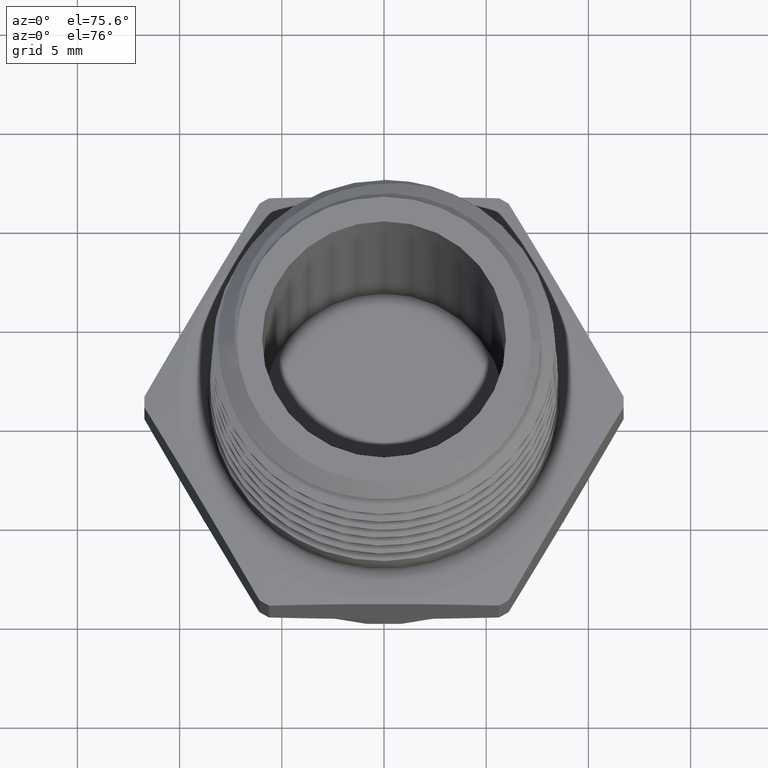
[diagram: clean part render]
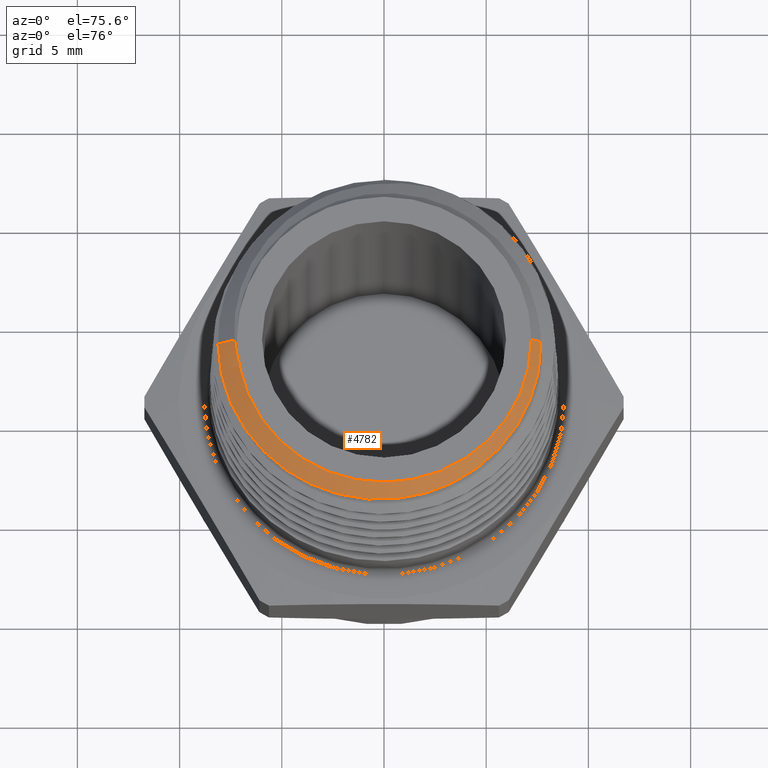
[diagram: same view with one face highlighted and labeled with its STEP entity id]
A machine part, auxiliary view. The second image highlights one B-rep face of the part: STEP entity #4782.
In plain terms, the highlighted conical surface has half-angle 45 deg.
Its self-contained STEP definition (entity closure, byte-faithful):
#113 = CARTESIAN_POINT ( 'NONE',  ( -0.3189870343248483200, -0.02048995156991510100, 0.5543179064996353000 ) ) ;
#114 = CARTESIAN_POINT ( 'NONE',  ( -0.3166690668718225600, -0.04073331671500152200, 0.5546844364673640900 ) ) ;
#115 = CARTESIAN_POINT ( 'NONE',  ( -0.3150307854697628200, -0.05076722431954363400, 0.5548668852132911900 ) ) ;
#116 = CARTESIAN_POINT ( 'NONE',  ( -0.3086862066485051600, -0.08060712011629819800, 0.5554115872342876300 ) ) ;
#117 = CARTESIAN_POINT ( 'NONE',  ( -0.3024691779386665700, -0.1003326236883411400, 0.5557730204087540900 ) ) ;
#118 = CARTESIAN_POINT ( 'NONE',  ( -0.2865631297787228900, -0.1377470904774228400, 0.5564994972389358800 ) ) ;
#119 = CARTESIAN_POINT ( 'NONE',  ( -0.2768932096105057300, -0.1555305442584327700, 0.5568680960787110200 ) ) ;
#120 = CARTESIAN_POINT ( 'NONE',  ( -0.2598167133555079900, -0.1808223008445341600, 0.5574173408340311600 ) ) ;
#121 = CARTESIAN_POINT ( 'NONE',  ( -0.2536562604319911300, -0.1890627549223502000, 0.5576011634299005100 ) ) ;
#122 = CARTESIAN_POINT ( 'NONE',  ( -0.2406282386876404900, -0.2048260588179402800, 0.5579659547833386600 ) ) ;
#123 = CARTESIAN_POINT ( 'NONE',  ( -0.2337782235706976100, -0.2123380082247982000, 0.5581466114378052000 ) ) ;
#124 = CARTESIAN_POINT ( 'NONE',  ( -0.2122413303071261100, -0.2337877873017910600, 0.5586927033307401700 ) ) ;
#125 = CARTESIAN_POINT ( 'NONE',  ( -0.1965755225490699000, -0.2466482062632879300, 0.5590643032440433300 ) ) ;
#126 = CARTESIAN_POINT ( 'NONE',  ( -0.1710638710812128500, -0.2637237499597268100, 0.5596210930765077600 ) ) ;
#127 = CARTESIAN_POINT ( 'NONE',  ( -0.1622538348351430200, -0.2690152070172156500, 0.5598061305501483800 ) ) ;
#128 = CARTESIAN_POINT ( 'NONE',  ( -0.1443350605810442800, -0.2786279562488926900, 0.5601715426763163000 ) ) ;
#129 = CARTESIAN_POINT ( 'NONE',  ( -0.1351839246680562000, -0.2829785165060427200, 0.5603528584090515800 ) ) ;
#130 = CARTESIAN_POINT ( 'NONE',  ( -0.1165009839155659000, -0.2907744466270606500, 0.5607188055096810100 ) ) ;
#131 = CARTESIAN_POINT ( 'NONE',  ( -0.1069688621252208700, -0.2942190218604253100, 0.5609043103813394800 ) ) ;
#132 = CARTESIAN_POINT ( 'NONE',  ( -0.08751843917434082300, -0.3001899109667249800, 0.5612779973589219200 ) ) ;
#133 = CARTESIAN_POINT ( 'NONE',  ( -0.07754431581550348700, -0.3027264747229597700, 0.5614669541183871000 ) ) ;
#134 = CARTESIAN_POINT ( 'NONE',  ( -0.04748049760923664400, -0.3088134887181203700, 0.5620274274213973300 ) ) ;
#135 = CARTESIAN_POINT ( 'NONE',  ( -0.02732020116120725100, -0.3108712028405032900, 0.5623897906747393800 ) ) ;
#136 = CARTESIAN_POINT ( 'NONE',  ( 0.01323138168449363900, -0.3110516055948870400, 0.5631278397901571300 ) ) ;
#137 = CARTESIAN_POINT ( 'NONE',  ( 0.03383779172206036200, -0.3091057892115288100, 0.5635125013598880600 ) ) ;
#138 = CARTESIAN_POINT ( 'NONE',  ( 0.07373847638161194800, -0.3013142427654969500, 0.5642606930742784000 ) ) ;
#139 = CARTESIAN_POINT ( 'NONE',  ( 0.09313976916151539600, -0.2955142638547510500, 0.5646253646956592700 ) ) ;
#140 = CARTESIAN_POINT ( 'NONE',  ( 0.1214050252856899400, -0.2839143587199415300, 0.5651855838662125400 ) ) ;
#141 = CARTESIAN_POINT ( 'NONE',  ( 0.1307355852972174600, -0.2795303780559625400, 0.5653769869348908000 ) ) ;
#142 = CARTESIAN_POINT ( 'NONE',  ( 0.1487659099935691700, -0.2699317147563004600, 0.5657575417632553200 ) ) ;
#143 = CARTESIAN_POINT ( 'NONE',  ( 0.1574841413487546600, -0.2647168071611325500, 0.5659467083978561000 ) ) ;
#144 = CARTESIAN_POINT ( 'NONE',  ( 0.1827700572806733600, -0.2478561352185640300, 0.5665099365010187700 ) ) ;
#145 = CARTESIAN_POINT ( 'NONE',  ( 0.1984788336382979100, -0.2350081737686351400, 0.5668778359104611500 ) ) ;
#146 = CARTESIAN_POINT ( 'NONE',  ( 0.2274823008042806700, -0.2059346025256601200, 0.5676369986991756100 ) ) ;
#147 = CARTESIAN_POINT ( 'NONE',  ( 0.2403106631370273700, -0.1901634773699423000, 0.5680204641782912200 ) ) ;
#148 = CARTESIAN_POINT ( 'NONE',  ( 0.2570808119209095400, -0.1648233914508744300, 0.5685873943897134000 ) ) ;
#149 = CARTESIAN_POINT ( 'NONE',  ( 0.2622599500830978300, -0.1560891306607778700, 0.5687754575458652300 ) ) ;
#150 = CARTESIAN_POINT ( 'NONE',  ( 0.2717747706589724900, -0.1380304141378446100, 0.5691530000720013100 ) ) ;
#151 = CARTESIAN_POINT ( 'NONE',  ( 0.2761175228485560600, -0.1286737770497061200, 0.5693430875058382900 ) ) ;
#152 = CARTESIAN_POINT ( 'NONE',  ( 0.2875703815786405100, -0.1003277186912817600, 0.5699133229903761100 ) ) ;
#153 = CARTESIAN_POINT ( 'NONE',  ( 0.2932311924329035800, -0.08088240343168026600, 0.5702981058094431800 ) ) ;
#154 = CARTESIAN_POINT ( 'NONE',  ( 0.2987949972767309200, -0.05090179175048425300, 0.5708706866359772900 ) ) ;
#155 = CARTESIAN_POINT ( 'NONE',  ( 0.3001610445120740400, -0.04072443913653559000, 0.5710620686955203400 ) ) ;
#156 = CARTESIAN_POINT ( 'NONE',  ( 0.3018472739647620200, -0.02030845490102714500, 0.5714436992464413400 ) ) ;
#157 = CARTESIAN_POINT ( 'NONE',  ( 0.3021672480374466600, -0.01013656346677850900, 0.5716327519625532500 ) ) ;
#158 = CARTESIAN_POINT ( 'NONE',  ( 0.3019762805559717500, 6.829619984160656800E-017, 0.5718237194440283200 ) ) ;
#220 = CARTESIAN_POINT ( 'NONE',  ( -0.2845128895515027200, -3.414809992080329000E-017, 0.5892871104484975800 ) ) ;
#221 = CARTESIAN_POINT ( 'NONE',  ( -0.2845001571392051800, -0.01596394462274854400, 0.5892998428607947300 ) ) ;
#226 = CARTESIAN_POINT ( 'NONE',  ( -0.2831298294752651000, -0.03189819327603237600, 0.5893265746674486400 ) ) ;
#227 = CARTESIAN_POINT ( 'NONE',  ( -0.2804411006234879800, -0.04763465816674870800, 0.5893421444612986200 ) ) ;
#228 = CARTESIAN_POINT ( 'NONE',  ( 0.3317566930126648600, 4.062847721936711200E-017, 0.5420433069873357200 ) ) ;
#229 = DIRECTION ( 'NONE',  ( 0.7071067811865512400, 8.659560562354978500E-017, -0.7071067811865438000 ) ) ;
#246 = CARTESIAN_POINT ( 'NONE',  ( -0.3317566930126648600, 0.0000000000000000000, 0.5420433069873357200 ) ) ;
#247 = DIRECTION ( 'NONE',  ( -0.7071067811865512400, 0.0000000000000000000, -0.7071067811865438000 ) ) ;
#248 = CARTESIAN_POINT ( 'NONE',  ( 0.0000000000000000000, 0.0000000000000000000, 0.5899999999999999700 ) ) ;
#249 = DIRECTION ( 'NONE',  ( -0.0000000000000000000, -0.0000000000000000000, -1.000000000000000000 ) ) ;
#250 = DIRECTION ( 'NONE',  ( -1.000000000000000000, 0.0000000000000000000, 0.0000000000000000000 ) ) ;
#251 = CARTESIAN_POINT ( 'NONE',  ( -0.2804411006234879800, -0.04763465816674870800, 0.5893421444612986200 ) ) ;
#252 = CARTESIAN_POINT ( 'NONE',  ( -0.2843080276471888200, -0.03185664178723579500, 0.5881719716316025100 ) ) ;
#257 = CARTESIAN_POINT ( 'NONE',  ( -0.2867591558004868300, -0.01597460336730868000, 0.5870408441995317300 ) ) ;
#258 = CARTESIAN_POINT ( 'NONE',  ( -0.2879028325516815300, 3.353570296803394600E-013, 0.5858971674483185500 ) ) ;
#553 = CARTESIAN_POINT ( 'NONE',  ( 0.2838000000000001100, 3.697608685098228000E-017, 0.5899999999999999700 ) ) ;
#557 = CARTESIAN_POINT ( 'NONE',  ( -0.2838000000000001100, 0.0000000000000000000, 0.5899999999999999700 ) ) ;
#558 = CARTESIAN_POINT ( 'NONE',  ( -0.2804411006234879800, -0.04763465816674870800, 0.5893421444612986200 ) ) ;
#562 = CARTESIAN_POINT ( 'NONE',  ( 0.3019762805559717500, 6.829619984160656800E-017, 0.5718237194440283200 ) ) ;
#566 = CARTESIAN_POINT ( 'NONE',  ( -0.2845128895515027200, -3.414809992080329000E-017, 0.5892871104484975800 ) ) ;
#570 = CARTESIAN_POINT ( 'NONE',  ( -0.2879028325516815300, 3.353570296803394600E-013, 0.5858971674483185500 ) ) ;
#571 = CARTESIAN_POINT ( 'NONE',  ( -0.3198490305247827500, 3.231021029591369500E-016, 0.5539509694752176000 ) ) ;
#585 = ORIENTED_EDGE ( 'NONE', *, *, #2852, .F. ) ;
#587 = ORIENTED_EDGE ( 'NONE', *, *, #2857, .T. ) ;
#589 = ORIENTED_EDGE ( 'NONE', *, *, #2839, .T. ) ;
#591 = ORIENTED_EDGE ( 'NONE', *, *, #2851, .T. ) ;
#593 = ORIENTED_EDGE ( 'NONE', *, *, #2860, .T. ) ;
#595 = ORIENTED_EDGE ( 'NONE', *, *, #2856, .T. ) ;
#598 = ORIENTED_EDGE ( 'NONE', *, *, #2842, .T. ) ;
#992 = DIRECTION ( 'NONE',  ( -1.000000000000000000, 0.0000000000000000000, 0.0000000000000000000 ) ) ;
#993 = CARTESIAN_POINT ( 'NONE',  ( 0.0000000000000000000, 0.0000000000000000000, 0.5420433069873357200 ) ) ;
#994 = DIRECTION ( 'NONE',  ( -0.0000000000000000000, -0.0000000000000000000, -1.000000000000000000 ) ) ;
#1956 = EDGE_LOOP ( 'NONE', ( #585, #587, #589, #591, #593, #595, #598 ) ) ;
#2005 = LINE ( 'NONE', #4173, #2006 ) ;
#2006 = VECTOR ( 'NONE', #4176, 39.37007874015748100 ) ;
#2014 = LINE ( 'NONE', #228, #2018 ) ;
#2018 = VECTOR ( 'NONE', #229, 39.37007874015748100 ) ;
#2019 = LINE ( 'NONE', #246, #2020 ) ;
#2020 = VECTOR ( 'NONE', #247, 39.37007874015748100 ) ;
#2021 = CIRCLE ( 'NONE', #4277, 0.2838000000000001100 ) ;
#2839 = EDGE_CURVE ( 'NONE', #4650, #4656, #2005, .T. ) ;
#2842 = EDGE_CURVE ( 'NONE', #4659, #4654, #2917, .T. ) ;
#2851 = EDGE_CURVE ( 'NONE', #4656, #4652, #2920, .T. ) ;
#2852 = EDGE_CURVE ( 'NONE', #4651, #4654, #2014, .T. ) ;
#2856 = EDGE_CURVE ( 'NONE', #4658, #4659, #2019, .T. ) ;
#2857 = EDGE_CURVE ( 'NONE', #4651, #4650, #2021, .T. ) ;
#2860 = EDGE_CURVE ( 'NONE', #4652, #4658, #2923, .T. ) ;
#2917 = B_SPLINE_CURVE_WITH_KNOTS ( 'NONE', 3,
 ( #4185, #4094, #113, #114, #115, #116, #117, #118, #119, #120, #121, #122, #123, #124, #125, #126, #127, #128, #129, #130, #131, #132, #133, #134, #135, #136, #137, #138, #139, #140, #141, #142, #143, #144, #145, #146, #147, #148, #149, #150, #151, #152, #153, #154, #155, #156, #157, #158 ),
 .UNSPECIFIED., .F., .F.,
 ( 4, 2, 2, 2, 2, 2, 2, 2, 2, 2, 2, 2, 2, 2, 2, 2, 2, 2, 2, 2, 2, 2, 2, 4 ),
 ( 0.01299472254944121700, 0.01376717789721780400, 0.01453963324499439100, 0.01608454394054756700, 0.01762945463610073700, 0.01840190998387732800, 0.01917436533165391500, 0.02071927602720709600, 0.02149173137498369000, 0.02226418672276028000, 0.02303664207053687400, 0.02380909741831346800, 0.02535400811386665300, 0.02689891880941983800, 0.02844382950497302600, 0.02921628485274961600, 0.02998874020052620700, 0.03153365089607939500, 0.03307856159163258300, 0.03385101693940917300, 0.03462347228718576400, 0.03616838298273895200, 0.03694083833051554200, 0.03771329367829213300 ),
 .UNSPECIFIED. ) ;
#2920 = B_SPLINE_CURVE_WITH_KNOTS ( 'NONE', 3,
 ( #220, #221, #226, #227 ),
 .UNSPECIFIED., .F., .F.,
 ( 4, 4 ),
 ( 0.0005361896884913190400, 0.001752663654119844900 ),
 .UNSPECIFIED. ) ;
#2923 = B_SPLINE_CURVE_WITH_KNOTS ( 'NONE', 3,
 ( #251, #252, #257, #258 ),
 .UNSPECIFIED., .F., .F.,
 ( 4, 4 ),
 ( 1.557984563733597200E-016, 0.001223488027527332400 ),
 .UNSPECIFIED. ) ;
#2990 = FACE_OUTER_BOUND ( 'NONE', #1956, .T. ) ;
#2995 = CONICAL_SURFACE ( 'NONE', #4326, 0.3317566930126648600, 0.7853981633974536100 ) ;
#4094 = CARTESIAN_POINT ( 'NONE',  ( -0.3196669143997031800, -0.01023886770468460100, 0.5541330856002972800 ) ) ;
#4173 = CARTESIAN_POINT ( 'NONE',  ( -0.3317566930126648600, 0.0000000000000000000, 0.5420433069873357200 ) ) ;
#4176 = DIRECTION ( 'NONE',  ( -0.7071067811865512400, 0.0000000000000000000, -0.7071067811865438000 ) ) ;
#4185 = CARTESIAN_POINT ( 'NONE',  ( -0.3198490305247827500, 3.231021029591369500E-016, 0.5539509694752176000 ) ) ;
#4277 = AXIS2_PLACEMENT_3D ( 'NONE', #248, #249, #250 ) ;
#4326 = AXIS2_PLACEMENT_3D ( 'NONE', #993, #994, #992 ) ;
#4650 = VERTEX_POINT ( 'NONE', #557 ) ;
#4651 = VERTEX_POINT ( 'NONE', #553 ) ;
#4652 = VERTEX_POINT ( 'NONE', #558 ) ;
#4654 = VERTEX_POINT ( 'NONE', #562 ) ;
#4656 = VERTEX_POINT ( 'NONE', #566 ) ;
#4658 = VERTEX_POINT ( 'NONE', #570 ) ;
#4659 = VERTEX_POINT ( 'NONE', #571 ) ;
#4782 = ADVANCED_FACE ( 'NONE', ( #2990 ), #2995, .T. ) ;